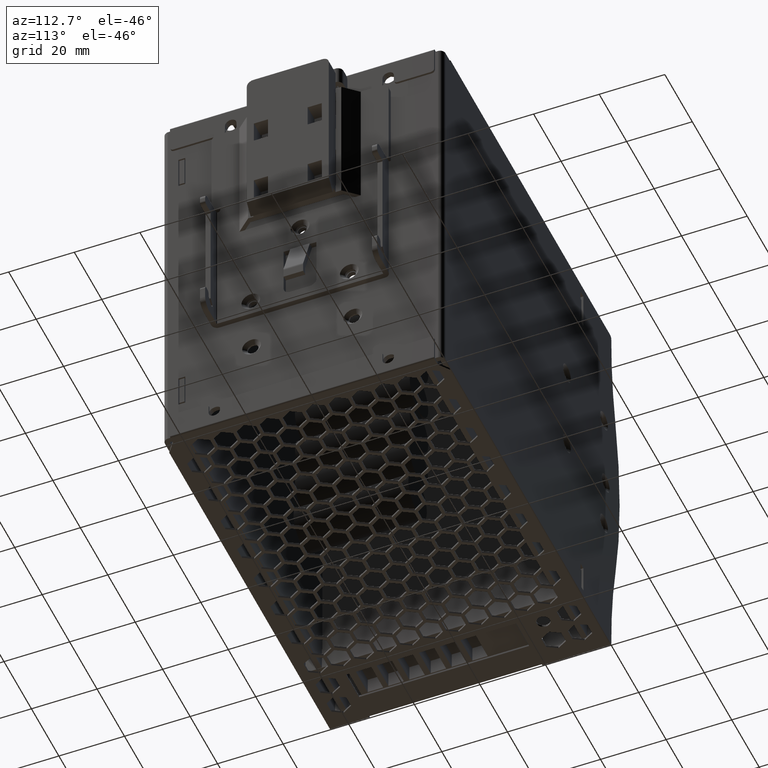
[diagram: clean part render]
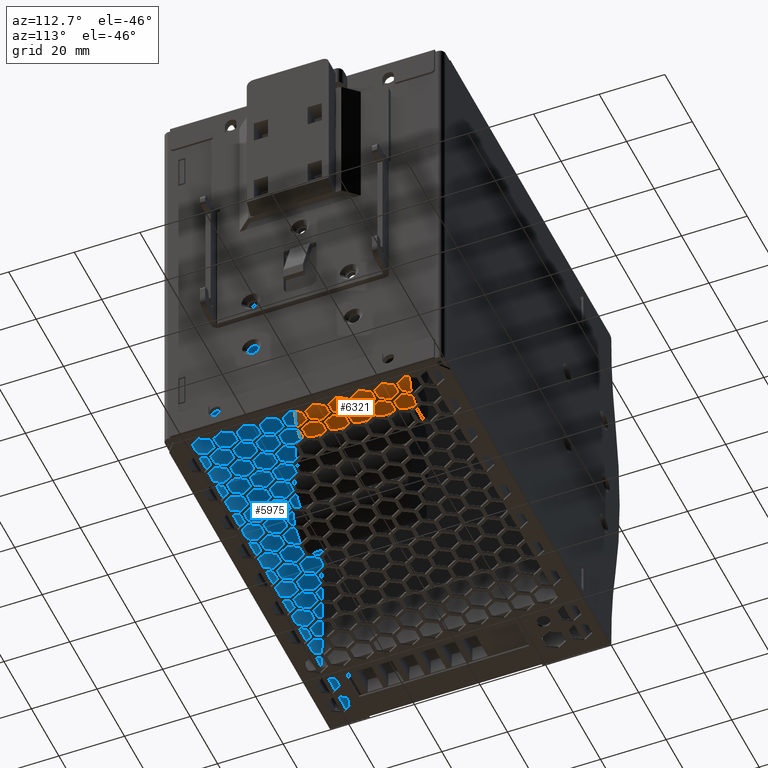
[diagram: same view with the hole feature highlighted: cylindrical wall and planar end face, labeled with their STEP entity ids]
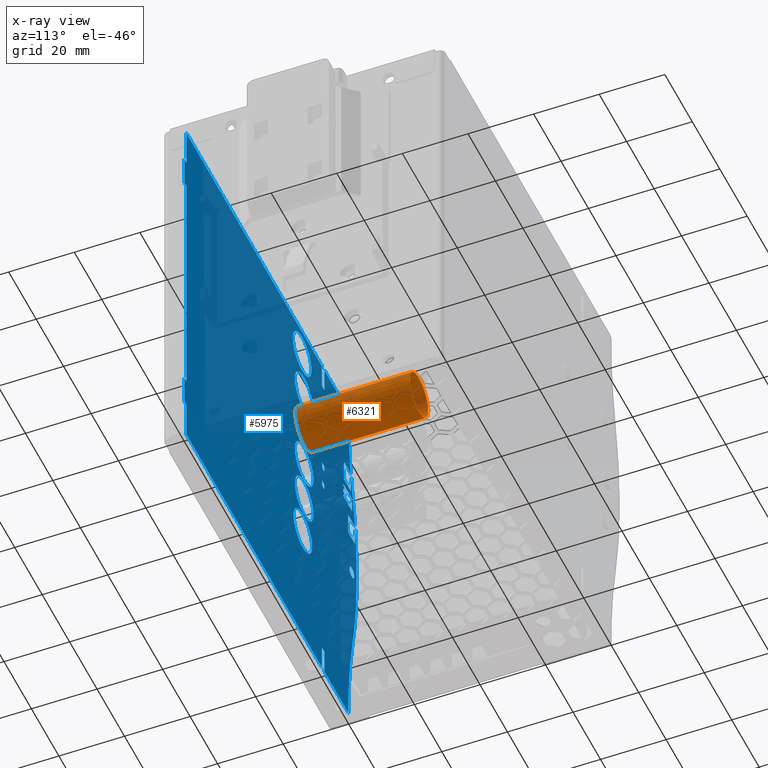
[diagram: x-ray of the same camera — body ghosted, the hole faces saturated]
A machine part, auxiliary view. The highlighted faces form one hole feature of diameter 13.5 mm: the cylindrical wall (entity #6321, orange) and its adjacent planar end face (entity #5975, blue) — they share a circular edge in the B-rep.
The next image is the same camera in x-ray (body ghosted, the hole faces saturated) — the bore reads through the body.
Wall:
#5681=CARTESIAN_POINT('',(5.242958000371990,25.836137000000004,35.000000000141398));
#5682=VERTEX_POINT('',#5681);
#5683=CARTESIAN_POINT('',(11.992958000345000,25.836137000000004,35.000000000141398));
#5684=DIRECTION('',(0.0,1.0,0.0));
#5685=DIRECTION('',(-1.0,0.0,0.0));
#5686=AXIS2_PLACEMENT_3D('',#5683,#5684,#5685);
#5687=CIRCLE('',#5686,6.749999999972991);
#5688=EDGE_CURVE('',#5682,#5682,#5687,.T.);
#6302=CARTESIAN_POINT('',(11.992958000345000,25.836137000000004,35.000000000141398));
#6303=DIRECTION('',(0.0,1.0,0.0));
#6304=DIRECTION('',(-1.0,0.0,0.0));
#6305=AXIS2_PLACEMENT_3D('',#6302,#6303,#6304);
#6306=CYLINDRICAL_SURFACE('',#6305,6.749999999972991);
#6307=CARTESIAN_POINT('',(5.242958000371990,60.836137000000008,35.000000000141398));
#6308=VERTEX_POINT('',#6307);
#6309=CARTESIAN_POINT('',(11.992958000345000,60.836137000000008,35.000000000141398));
#6310=DIRECTION('',(0.0,1.0,0.0));
#6311=DIRECTION('',(-1.0,0.0,0.0));
#6312=AXIS2_PLACEMENT_3D('',#6309,#6310,#6311);
#6313=CIRCLE('',#6312,6.749999999972991);
#6314=EDGE_CURVE('',#6308,#6308,#6313,.T.);
#6315=ORIENTED_EDGE('',*,*,#6314,.F.);
#6316=EDGE_LOOP('',(#6315));
#6317=FACE_OUTER_BOUND('',#6316,.T.);
#6318=ORIENTED_EDGE('',*,*,#5688,.T.);
#6319=EDGE_LOOP('',(#6318));
#6320=FACE_BOUND('',#6319,.T.);
#6321=ADVANCED_FACE('',(#6317,#6320),#6306,.T.);
End face:
#5068=CARTESIAN_POINT('',(97.752958000000021,25.836137000000004,51.500000000063800));
#5069=VERTEX_POINT('',#5068);
#5070=CARTESIAN_POINT('',(97.752958000000021,25.836137000000004,-27.499999999570601));
#5071=VERTEX_POINT('',#5070);
#5072=CARTESIAN_POINT('',(97.752958000000021,25.836137000000004,51.500000000063800));
#5073=DIRECTION('',(0.0,0.0,-1.0));
#5074=VECTOR('',#5073,78.999999999634397);
#5075=LINE('',#5072,#5074);
#5076=EDGE_CURVE('',#5069,#5071,#5075,.T.);
#5117=CARTESIAN_POINT('',(99.252958000000007,25.836137000000004,-27.499999999570601));
#5118=VERTEX_POINT('',#5117);
#5125=CARTESIAN_POINT('',(97.752958000000021,25.836137000000004,-27.499999999570601));
#5126=DIRECTION('',(1.0,0.0,0.0));
#5127=VECTOR('',#5126,1.499999999999986);
#5128=LINE('',#5125,#5127);
#5129=EDGE_CURVE('',#5071,#5118,#5128,.T.);
#5139=CARTESIAN_POINT('',(-20.202716694186403,25.836137000000004,-48.999999999509605));
#5140=VERTEX_POINT('',#5139);
#5149=CARTESIAN_POINT('',(-2.697041999709530,25.836137000000004,-48.999999999509605));
#5150=VERTEX_POINT('',#5149);
#5151=CARTESIAN_POINT('',(-2.697041999709530,25.836137000000004,-48.999999999509605));
#5152=DIRECTION('',(-1.0,0.0,0.0));
#5153=VECTOR('',#5152,17.505674694476873);
#5154=LINE('',#5151,#5153);
#5155=EDGE_CURVE('',#5150,#5140,#5154,.T.);
#5179=CARTESIAN_POINT('',(-20.202756284557402,25.836137000000004,-48.808464863391308));
#5180=VERTEX_POINT('',#5179);
#5181=CARTESIAN_POINT('',(-20.202756284557402,25.836137000000004,-48.808464863391308));
#5182=DIRECTION('',(0.000206700300300,0.0,-0.999999978637493));
#5183=VECTOR('',#5182,0.191535140209968);
#5184=LINE('',#5181,#5183);
#5185=EDGE_CURVE('',#5180,#5140,#5184,.T.);
#5210=CARTESIAN_POINT('',(-23.213020265155201,25.836137000000004,-18.209646134012800));
#5211=VERTEX_POINT('',#5210);
#5212=CARTESIAN_POINT('',(-169.200665681846030,25.836137000000004,-48.019164504897304));
#5213=DIRECTION('',(0.0,-1.0,0.0));
#5214=DIRECTION('',(0.0,0.0,-1.0));
#5215=AXIS2_PLACEMENT_3D('',#5212,#5213,#5214);
#5216=CIRCLE('',#5215,148.999999999391010);
#5217=EDGE_CURVE('',#5180,#5211,#5216,.T.);
#5243=CARTESIAN_POINT('',(-23.213020265152700,25.836137000000004,42.209646134520298));
#5244=VERTEX_POINT('',#5243);
#5245=CARTESIAN_POINT('',(124.734190861869010,25.836137000000004,12.000000000247702));
#5246=DIRECTION('',(0.0,-1.0,0.0));
#5247=DIRECTION('',(0.0,0.0,-1.0));
#5248=AXIS2_PLACEMENT_3D('',#5245,#5246,#5247);
#5249=CIRCLE('',#5248,150.999999999409000);
#5250=EDGE_CURVE('',#5244,#5211,#5249,.T.);
#5278=CARTESIAN_POINT('',(-20.202021535844899,25.836137000000004,73.000000000002885));
#5279=VERTEX_POINT('',#5278);
#5286=CARTESIAN_POINT('',(-20.202021535844899,25.836137000000004,72.654807855400406));
#5287=VERTEX_POINT('',#5286);
#5288=CARTESIAN_POINT('',(-20.202021535844899,25.836137000000004,73.000000000002885));
#5289=DIRECTION('',(0.0,0.0,-1.0));
#5290=VECTOR('',#5289,0.345192144602478);
#5291=LINE('',#5288,#5290);
#5292=EDGE_CURVE('',#5279,#5287,#5291,.T.);
#5316=CARTESIAN_POINT('',(-2.697041999709530,25.836137000000004,73.000000000002885));
#5317=VERTEX_POINT('',#5316);
#5326=CARTESIAN_POINT('',(-20.202021535844899,25.836137000000004,73.000000000002885));
#5327=DIRECTION('',(1.0,0.0,0.0));
#5328=VECTOR('',#5327,17.504979536135370);
#5329=LINE('',#5326,#5328);
#5330=EDGE_CURVE('',#5279,#5317,#5329,.T.);
#5347=CARTESIAN_POINT('',(-0.897041999709522,25.836137000000004,-48.999999999509605));
#5348=VERTEX_POINT('',#5347);
#5357=CARTESIAN_POINT('',(97.752958000000021,25.836137000000004,-48.999999999509605));
#5358=VERTEX_POINT('',#5357);
#5359=CARTESIAN_POINT('',(97.752958000000021,25.836137000000004,-48.999999999509605));
#5360=DIRECTION('',(-1.0,0.0,0.0));
#5361=VECTOR('',#5360,98.649999999709536);
#5362=LINE('',#5359,#5361);
#5363=EDGE_CURVE('',#5358,#5348,#5362,.T.);
#5389=CARTESIAN_POINT('',(-0.897041999709522,25.836137000000004,73.000000000002885));
#5390=VERTEX_POINT('',#5389);
#5397=CARTESIAN_POINT('',(-0.897041999709522,25.836137000000004,65.000000000003396));
#5398=VERTEX_POINT('',#5397);
#5399=CARTESIAN_POINT('',(-0.897041999709522,25.836137000000004,73.000000000002885));
#5400=DIRECTION('',(0.0,0.0,-1.0));
#5401=VECTOR('',#5400,7.999999999999488);
#5402=LINE('',#5399,#5401);
#5403=EDGE_CURVE('',#5390,#5398,#5402,.T.);
#5437=CARTESIAN_POINT('',(-2.697041999709530,25.836137000000004,-40.999999999509100));
#5438=VERTEX_POINT('',#5437);
#5445=CARTESIAN_POINT('',(-0.897041999709522,25.836137000000004,-40.999999999509100));
#5446=VERTEX_POINT('',#5445);
#5447=CARTESIAN_POINT('',(-2.697041999709530,25.836137000000004,-40.999999999509100));
#5448=DIRECTION('',(1.0,0.0,0.0));
#5449=VECTOR('',#5448,1.800000000000008);
#5450=LINE('',#5447,#5449);
#5451=EDGE_CURVE('',#5438,#5446,#5450,.T.);
#5468=CARTESIAN_POINT('',(-2.697041999709530,25.836137000000004,-48.999999999509605));
#5469=DIRECTION('',(0.0,0.0,1.0));
#5470=VECTOR('',#5469,8.000000000000505);
#5471=LINE('',#5468,#5470);
#5472=EDGE_CURVE('',#5150,#5438,#5471,.T.);
#5489=CARTESIAN_POINT('',(-0.897041999709522,25.836137000000004,-40.999999999509100));
#5490=DIRECTION('',(0.0,0.0,-1.0));
#5491=VECTOR('',#5490,8.000000000000505);
#5492=LINE('',#5489,#5491);
#5493=EDGE_CURVE('',#5446,#5348,#5492,.T.);
#5520=CARTESIAN_POINT('',(-2.697041999709530,25.836137000000004,65.000000000003396));
#5521=VERTEX_POINT('',#5520);
#5522=CARTESIAN_POINT('',(-0.897041999709522,25.836137000000004,65.000000000003396));
#5523=DIRECTION('',(-1.0,0.0,0.0));
#5524=VECTOR('',#5523,1.800000000000008);
#5525=LINE('',#5522,#5524);
#5526=EDGE_CURVE('',#5398,#5521,#5525,.T.);
#5549=CARTESIAN_POINT('',(-2.697041999709530,25.836137000000004,65.000000000003396));
#5550=DIRECTION('',(0.0,0.0,1.0));
#5551=VECTOR('',#5550,7.999999999999488);
#5552=LINE('',#5549,#5551);
#5553=EDGE_CURVE('',#5521,#5317,#5552,.T.);
#5559=CARTESIAN_POINT('',(86.102958000000015,25.836137000000004,-29.749999999570598));
#5560=DIRECTION('',(0.0,1.0,0.0));
#5561=DIRECTION('',(0.0,0.0,1.0));
#5562=AXIS2_PLACEMENT_3D('',#5559,#5560,#5561);
#5563=PLANE('',#5562);
#5564=ORIENTED_EDGE('',*,*,#5129,.T.);
#5565=CARTESIAN_POINT('',(99.252958000000007,25.836137000000004,-36.999999999570598));
#5566=VERTEX_POINT('',#5565);
#5567=CARTESIAN_POINT('',(99.252958000000007,25.836137000000004,-36.999999999570598));
#5568=DIRECTION('',(0.0,0.0,1.0));
#5569=VECTOR('',#5568,9.499999999999996);
#5570=LINE('',#5567,#5569);
#5571=EDGE_CURVE('',#5566,#5118,#5570,.T.);
#5572=ORIENTED_EDGE('',*,*,#5571,.F.);
#5573=CARTESIAN_POINT('',(97.752958000000021,25.836137000000004,-36.999999999570598));
#5574=VERTEX_POINT('',#5573);
#5575=CARTESIAN_POINT('',(97.752958000000021,25.836137000000004,-36.999999999570598));
#5576=DIRECTION('',(1.0,0.0,0.0));
#5577=VECTOR('',#5576,1.499999999999986);
#5578=LINE('',#5575,#5577);
#5579=EDGE_CURVE('',#5574,#5566,#5578,.T.);
#5580=ORIENTED_EDGE('',*,*,#5579,.F.);
#5581=CARTESIAN_POINT('',(97.752958000000021,25.836137000000004,-36.999999999570598));
#5582=DIRECTION('',(0.0,0.0,-1.0));
#5583=VECTOR('',#5582,11.999999999939007);
#5584=LINE('',#5581,#5583);
#5585=EDGE_CURVE('',#5574,#5358,#5584,.T.);
#5586=ORIENTED_EDGE('',*,*,#5585,.T.);
#5587=ORIENTED_EDGE('',*,*,#5363,.T.);
#5588=ORIENTED_EDGE('',*,*,#5493,.F.);
#5589=ORIENTED_EDGE('',*,*,#5451,.F.);
#5590=ORIENTED_EDGE('',*,*,#5472,.F.);
#5591=ORIENTED_EDGE('',*,*,#5155,.T.);
#5592=ORIENTED_EDGE('',*,*,#5185,.F.);
#5593=ORIENTED_EDGE('',*,*,#5217,.T.);
#5594=ORIENTED_EDGE('',*,*,#5250,.F.);
#5595=CARTESIAN_POINT('',(-169.200665681846030,25.836137000000004,72.019164505417706));
#5596=DIRECTION('',(0.0,-1.0,0.0));
#5597=DIRECTION('',(0.0,0.0,-1.0));
#5598=AXIS2_PLACEMENT_3D('',#5595,#5596,#5597);
#5599=CIRCLE('',#5598,148.999999999380010);
#5600=EDGE_CURVE('',#5244,#5287,#5599,.T.);
#5601=ORIENTED_EDGE('',*,*,#5600,.T.);
#5602=ORIENTED_EDGE('',*,*,#5292,.F.);
#5603=ORIENTED_EDGE('',*,*,#5330,.T.);
#5604=ORIENTED_EDGE('',*,*,#5553,.F.);
#5605=ORIENTED_EDGE('',*,*,#5526,.F.);
#5606=ORIENTED_EDGE('',*,*,#5403,.F.);
#5607=CARTESIAN_POINT('',(97.752958000000021,25.836137000000004,73.000000000002885));
#5608=VERTEX_POINT('',#5607);
#5609=CARTESIAN_POINT('',(-0.897041999709522,25.836137000000004,73.000000000002885));
#5610=DIRECTION('',(1.0,0.0,0.0));
#5611=VECTOR('',#5610,98.649999999709536);
#5612=LINE('',#5609,#5611);
#5613=EDGE_CURVE('',#5390,#5608,#5612,.T.);
#5614=ORIENTED_EDGE('',*,*,#5613,.T.);
#5615=CARTESIAN_POINT('',(97.752958000000021,25.836137000000004,61.000000000063807));
#5616=VERTEX_POINT('',#5615);
#5617=CARTESIAN_POINT('',(97.752958000000021,25.836137000000004,73.000000000002885));
#5618=DIRECTION('',(0.0,0.0,-1.0));
#5619=VECTOR('',#5618,11.999999999939078);
#5620=LINE('',#5617,#5619);
#5621=EDGE_CURVE('',#5608,#5616,#5620,.T.);
#5622=ORIENTED_EDGE('',*,*,#5621,.T.);
#5623=CARTESIAN_POINT('',(99.252958000000007,25.836137000000004,61.000000000063807));
#5624=VERTEX_POINT('',#5623);
#5625=CARTESIAN_POINT('',(99.252958000000007,25.836137000000004,61.000000000063807));
#5626=DIRECTION('',(-1.0,0.0,0.0));
#5627=VECTOR('',#5626,1.499999999999986);
#5628=LINE('',#5625,#5627);
#5629=EDGE_CURVE('',#5624,#5616,#5628,.T.);
#5630=ORIENTED_EDGE('',*,*,#5629,.F.);
#5631=CARTESIAN_POINT('',(99.252958000000007,25.836137000000004,51.500000000063800));
#5632=VERTEX_POINT('',#5631);
#5633=CARTESIAN_POINT('',(99.252958000000007,25.836137000000004,51.500000000063800));
#5634=DIRECTION('',(0.0,0.0,1.0));
#5635=VECTOR('',#5634,9.500000000000007);
#5636=LINE('',#5633,#5635);
#5637=EDGE_CURVE('',#5632,#5624,#5636,.T.);
#5638=ORIENTED_EDGE('',*,*,#5637,.F.);
#5639=CARTESIAN_POINT('',(99.252958000000007,25.836137000000004,51.500000000063800));
#5640=DIRECTION('',(-1.0,0.0,0.0));
#5641=VECTOR('',#5640,1.499999999999986);
#5642=LINE('',#5639,#5641);
#5643=EDGE_CURVE('',#5632,#5069,#5642,.T.);
#5644=ORIENTED_EDGE('',*,*,#5643,.T.);
#5645=ORIENTED_EDGE('',*,*,#5076,.T.);
#5646=EDGE_LOOP('',(#5564,#5572,#5580,#5586,#5587,#5588,#5589,#5590,#5591,#5592,#5593,#5594,#5601,#5602,#5603,#5604,#5605,#5606,#5614,#5622,#5630,#5638,#5644,#5645));
#5647=FACE_OUTER_BOUND('',#5646,.T.);
#5648=CARTESIAN_POINT('',(6.252958000371981,25.836137000000004,-6.999999999690640));
#5649=VERTEX_POINT('',#5648);
#5650=CARTESIAN_POINT('',(13.002958000345002,25.836137000000004,-6.999999999690640));
#5651=DIRECTION('',(0.0,1.0,0.0));
#5652=DIRECTION('',(-1.0,0.0,0.0));
#5653=AXIS2_PLACEMENT_3D('',#5650,#5651,#5652);
#5654=CIRCLE('',#5653,6.749999999972991);
#5655=EDGE_CURVE('',#5649,#5649,#5654,.T.);
#5656=ORIENTED_EDGE('',*,*,#5655,.F.);
#5657=EDGE_LOOP('',(#5656));
#5658=FACE_BOUND('',#5657,.T.);
#5659=CARTESIAN_POINT('',(5.242958000371961,25.836137000000004,21.000000000197399));
#5660=VERTEX_POINT('',#5659);
#5661=CARTESIAN_POINT('',(11.992958000345000,25.836137000000004,21.000000000197399));
#5662=DIRECTION('',(0.0,1.0,0.0));
#5663=DIRECTION('',(-1.0,0.0,0.0));
#5664=AXIS2_PLACEMENT_3D('',#5661,#5662,#5663);
#5665=CIRCLE('',#5664,6.749999999973031);
#5666=EDGE_CURVE('',#5660,#5660,#5665,.T.);
#5667=ORIENTED_EDGE('',*,*,#5666,.F.);
#5668=EDGE_LOOP('',(#5667));
#5669=FACE_BOUND('',#5668,.T.);
#5670=CARTESIAN_POINT('',(5.242958000371990,25.836137000000004,49.250000000084398));
#5671=VERTEX_POINT('',#5670);
#5672=CARTESIAN_POINT('',(11.992958000345000,25.836137000000004,49.250000000084398));
#5673=DIRECTION('',(0.0,1.0,0.0));
#5674=DIRECTION('',(-1.0,0.0,0.0));
#5675=AXIS2_PLACEMENT_3D('',#5672,#5673,#5674);
#5676=CIRCLE('',#5675,6.749999999972991);
#5677=EDGE_CURVE('',#5671,#5671,#5676,.T.);
#5678=ORIENTED_EDGE('',*,*,#5677,.F.);
#5679=EDGE_LOOP('',(#5678));
#5680=FACE_BOUND('',#5679,.T.);
#5681=CARTESIAN_POINT('',(5.242958000371990,25.836137000000004,35.000000000141398));
#5682=VERTEX_POINT('',#5681);
#5683=CARTESIAN_POINT('',(11.992958000345000,25.836137000000004,35.000000000141398));
#5684=DIRECTION('',(0.0,1.0,0.0));
#5685=DIRECTION('',(-1.0,0.0,0.0));
#5686=AXIS2_PLACEMENT_3D('',#5683,#5684,#5685);
#5687=CIRCLE('',#5686,6.749999999972991);
#5688=EDGE_CURVE('',#5682,#5682,#5687,.T.);
#5689=ORIENTED_EDGE('',*,*,#5688,.F.);
#5690=EDGE_LOOP('',(#5689));
#5691=FACE_BOUND('',#5690,.T.);
#5692=CARTESIAN_POINT('',(-24.497041999534002,25.836137000000004,10.250000000253499));
#5693=VERTEX_POINT('',#5692);
#5694=CARTESIAN_POINT('',(-22.747041999533998,25.836137000000004,10.250000000253499));
#5695=DIRECTION('',(0.0,1.0,0.0));
#5696=DIRECTION('',(-1.0,0.0,0.0));
#5697=AXIS2_PLACEMENT_3D('',#5694,#5695,#5696);
#5698=CIRCLE('',#5697,1.750000000000000);
#5699=EDGE_CURVE('',#5693,#5693,#5698,.T.);
#5700=ORIENTED_EDGE('',*,*,#5699,.F.);
#5701=EDGE_LOOP('',(#5700));
#5702=FACE_BOUND('',#5701,.T.);
#5703=CARTESIAN_POINT('',(6.720729093573031,25.836137000000004,64.182230000027388));
#5704=VERTEX_POINT('',#5703);
#5705=CARTESIAN_POINT('',(13.470728000345902,25.836137000000004,64.182230000027388));
#5706=DIRECTION('',(0.0,1.0,0.0));
#5707=DIRECTION('',(-1.0,0.0,0.0));
#5708=AXIS2_PLACEMENT_3D('',#5705,#5706,#5707);
#5709=CIRCLE('',#5708,6.749998906772900);
#5710=EDGE_CURVE('',#5704,#5704,#5709,.T.);
#5711=ORIENTED_EDGE('',*,*,#5710,.F.);
#5712=EDGE_LOOP('',(#5711));
#5713=FACE_BOUND('',#5712,.T.);
#5714=CARTESIAN_POINT('',(5.252958000371950,25.836137000000004,7.000000000253372));
#5715=VERTEX_POINT('',#5714);
#5716=CARTESIAN_POINT('',(12.002958000345000,25.836137000000004,7.000000000253372));
#5717=DIRECTION('',(0.0,1.0,0.0));
#5718=DIRECTION('',(-1.0,0.0,0.0));
#5719=AXIS2_PLACEMENT_3D('',#5716,#5717,#5718);
#5720=CIRCLE('',#5719,6.749999999973031);
#5721=EDGE_CURVE('',#5715,#5715,#5720,.T.);
#5722=ORIENTED_EDGE('',*,*,#5721,.F.);
#5723=EDGE_LOOP('',(#5722));
#5724=FACE_BOUND('',#5723,.T.);
#5725=CARTESIAN_POINT('',(-0.997499799710241,25.836137000000004,26.749618064602299));
#5726=VERTEX_POINT('',#5725);
#5727=CARTESIAN_POINT('',(-0.997499799710241,25.836137000000004,24.749618064611401));
#5728=VERTEX_POINT('',#5727);
#5729=CARTESIAN_POINT('',(-0.997499799710241,25.836137000000004,26.749618064602299));
#5730=DIRECTION('',(0.0,0.0,-1.0));
#5731=VECTOR('',#5730,1.999999999990898);
#5732=LINE('',#5729,#5731);
#5733=EDGE_CURVE('',#5726,#5728,#5732,.T.);
#5734=ORIENTED_EDGE('',*,*,#5733,.F.);
#5735=CARTESIAN_POINT('',(-2.597499799709690,25.836137000000004,26.749618064602299));
#5736=VERTEX_POINT('',#5735);
#5737=CARTESIAN_POINT('',(-2.597499799709690,25.836137000000004,26.749618064602299));
#5738=DIRECTION('',(1.0,0.0,0.0));
#5739=VECTOR('',#5738,1.599999999999449);
#5740=LINE('',#5737,#5739);
#5741=EDGE_CURVE('',#5736,#5726,#5740,.T.);
#5742=ORIENTED_EDGE('',*,*,#5741,.F.);
#5743=CARTESIAN_POINT('',(-2.597499799709690,25.836137000000004,24.749618064611401));
#5744=VERTEX_POINT('',#5743);
#5745=CARTESIAN_POINT('',(-2.597499799709690,25.836137000000004,26.749618064602299));
#5746=DIRECTION('',(0.0,0.0,-1.0));
#5747=VECTOR('',#5746,1.999999999990898);
#5748=LINE('',#5745,#5747);
#5749=EDGE_CURVE('',#5736,#5744,#5748,.T.);
#5750=ORIENTED_EDGE('',*,*,#5749,.T.);
#5751=CARTESIAN_POINT('',(-0.997499799710241,25.836137000000004,24.749618064611401));
#5752=DIRECTION('',(-1.0,0.0,0.0));
#5753=VECTOR('',#5752,1.599999999999449);
#5754=LINE('',#5751,#5753);
#5755=EDGE_CURVE('',#5728,#5744,#5754,.T.);
#5756=ORIENTED_EDGE('',*,*,#5755,.F.);
#5757=EDGE_LOOP('',(#5734,#5742,#5750,#5756));
#5758=FACE_BOUND('',#5757,.T.);
#5759=CARTESIAN_POINT('',(-2.597499799709690,25.836137000000004,34.023838064561595));
#5760=VERTEX_POINT('',#5759);
#5761=CARTESIAN_POINT('',(-2.597499799709690,25.836137000000004,32.023838064570704));
#5762=VERTEX_POINT('',#5761);
#5763=CARTESIAN_POINT('',(-2.597499799709690,25.836137000000004,34.023838064561595));
#5764=DIRECTION('',(0.0,0.0,-1.0));
#5765=VECTOR('',#5764,1.999999999990891);
#5766=LINE('',#5763,#5765);
#5767=EDGE_CURVE('',#5760,#5762,#5766,.T.);
#5768=ORIENTED_EDGE('',*,*,#5767,.T.);
#5769=CARTESIAN_POINT('',(-0.997499799710241,25.836137000000004,32.023838064570704));
#5770=VERTEX_POINT('',#5769);
#5771=CARTESIAN_POINT('',(-0.997499799710241,25.836137000000004,32.023838064570704));
#5772=DIRECTION('',(-1.0,0.0,0.0));
#5773=VECTOR('',#5772,1.599999999999449);
#5774=LINE('',#5771,#5773);
#5775=EDGE_CURVE('',#5770,#5762,#5774,.T.);
#5776=ORIENTED_EDGE('',*,*,#5775,.F.);
#5777=CARTESIAN_POINT('',(-0.997499799710241,25.836137000000004,34.023838064561595));
#5778=VERTEX_POINT('',#5777);
#5779=CARTESIAN_POINT('',(-0.997499799710241,25.836137000000004,34.023838064561595));
#5780=DIRECTION('',(0.0,0.0,-1.0));
#5781=VECTOR('',#5780,1.999999999990891);
#5782=LINE('',#5779,#5781);
#5783=EDGE_CURVE('',#5778,#5770,#5782,.T.);
#5784=ORIENTED_EDGE('',*,*,#5783,.F.);
#5785=CARTESIAN_POINT('',(-2.597499799709690,25.836137000000004,34.023838064561595));
#5786=DIRECTION('',(1.0,0.0,0.0));
#5787=VECTOR('',#5786,1.599999999999449);
#5788=LINE('',#5785,#5787);
#5789=EDGE_CURVE('',#5760,#5778,#5788,.T.);
#5790=ORIENTED_EDGE('',*,*,#5789,.F.);
#5791=EDGE_LOOP('',(#5768,#5776,#5784,#5790));
#5792=FACE_BOUND('',#5791,.T.);
#5793=CARTESIAN_POINT('',(-16.906441893837602,25.836137000000004,42.499988064101402));
#5794=VERTEX_POINT('',#5793);
#5795=CARTESIAN_POINT('',(-21.897041893822703,25.836137000000004,42.499988064101402));
#5796=VERTEX_POINT('',#5795);
#5797=CARTESIAN_POINT('',(-16.906441893837602,25.836137000000004,42.499988064101402));
#5798=DIRECTION('',(-1.0,0.0,0.0));
#5799=VECTOR('',#5798,4.990599999985101);
#5800=LINE('',#5797,#5799);
#5801=EDGE_CURVE('',#5794,#5796,#5800,.T.);
#5802=ORIENTED_EDGE('',*,*,#5801,.F.);
#5803=CARTESIAN_POINT('',(-16.906441893837602,25.836137000000004,49.505188064061905));
#5804=VERTEX_POINT('',#5803);
#5805=CARTESIAN_POINT('',(-16.906441893837602,25.836137000000004,49.505188064061905));
#5806=DIRECTION('',(0.0,0.0,-1.0));
#5807=VECTOR('',#5806,7.005199999960503);
#5808=LINE('',#5805,#5807);
#5809=EDGE_CURVE('',#5804,#5794,#5808,.T.);
#5810=ORIENTED_EDGE('',*,*,#5809,.F.);
#5811=CARTESIAN_POINT('',(-17.147041893841802,25.836137000000004,49.499988064074110));
#5812=VERTEX_POINT('',#5811);
#5813=CARTESIAN_POINT('',(-17.147041893841802,25.836137000000004,49.499988064074110));
#5814=DIRECTION('',(0.999766528792243,0.0,0.021607589099862));
#5815=VECTOR('',#5814,0.240656186294668);
#5816=LINE('',#5813,#5815);
#5817=EDGE_CURVE('',#5812,#5804,#5816,.T.);
#5818=ORIENTED_EDGE('',*,*,#5817,.F.);
#5819=CARTESIAN_POINT('',(-21.897041893822703,25.836137000000004,49.499988064074110));
#5820=VERTEX_POINT('',#5819);
#5821=CARTESIAN_POINT('',(-21.897041893822703,25.836137000000004,49.499988064074110));
#5822=DIRECTION('',(1.0,0.0,0.0));
#5823=VECTOR('',#5822,4.749999999980901);
#5824=LINE('',#5821,#5823);
#5825=EDGE_CURVE('',#5820,#5812,#5824,.T.);
#5826=ORIENTED_EDGE('',*,*,#5825,.F.);
#5827=CARTESIAN_POINT('',(-21.897041893822703,25.836137000000004,42.499988064101402));
#5828=DIRECTION('',(0.0,0.0,1.0));
#5829=VECTOR('',#5828,6.999999999972708);
#5830=LINE('',#5827,#5829);
#5831=EDGE_CURVE('',#5796,#5820,#5830,.T.);
#5832=ORIENTED_EDGE('',*,*,#5831,.F.);
#5833=EDGE_LOOP('',(#5802,#5810,#5818,#5826,#5832));
#5834=FACE_BOUND('',#5833,.T.);
#5835=CARTESIAN_POINT('',(-17.187041893851699,25.836137000000004,38.509988064110701));
#5836=VERTEX_POINT('',#5835);
#5837=CARTESIAN_POINT('',(-16.437041893855799,25.836137000000004,38.509988064110701));
#5838=VERTEX_POINT('',#5837);
#5839=CARTESIAN_POINT('',(-17.187041893851699,25.836137000000004,38.509988064110701));
#5840=DIRECTION('',(1.0,0.0,0.0));
#5841=VECTOR('',#5840,0.749999999995900);
#5842=LINE('',#5839,#5841);
#5843=EDGE_CURVE('',#5836,#5838,#5842,.T.);
#5844=ORIENTED_EDGE('',*,*,#5843,.F.);
#5845=CARTESIAN_POINT('',(-17.187041893851699,25.836137000000004,39.509988064106196));
#5846=VERTEX_POINT('',#5845);
#5847=CARTESIAN_POINT('',(-17.187041893851699,25.836137000000004,39.509988064106196));
#5848=DIRECTION('',(0.0,0.0,-1.0));
#5849=VECTOR('',#5848,0.999999999995495);
#5850=LINE('',#5847,#5849);
#5851=EDGE_CURVE('',#5846,#5836,#5850,.T.);
#5852=ORIENTED_EDGE('',*,*,#5851,.F.);
#5853=CARTESIAN_POINT('',(-16.437041893855799,25.836137000000004,39.509988064106196));
#5854=VERTEX_POINT('',#5853);
#5855=CARTESIAN_POINT('',(-16.437041893855799,25.836137000000004,39.509988064106196));
#5856=DIRECTION('',(-1.0,0.0,0.0));
#5857=VECTOR('',#5856,0.749999999995900);
#5858=LINE('',#5855,#5857);
#5859=EDGE_CURVE('',#5854,#5846,#5858,.T.);
#5860=ORIENTED_EDGE('',*,*,#5859,.F.);
#5861=CARTESIAN_POINT('',(-16.437041893855799,25.836137000000004,40.259988064103496));
#5862=VERTEX_POINT('',#5861);
#5863=CARTESIAN_POINT('',(-16.437041893855799,25.836137000000004,40.259988064103496));
#5864=DIRECTION('',(0.0,0.0,-1.0));
#5865=VECTOR('',#5864,0.749999999997300);
#5866=LINE('',#5863,#5865);
#5867=EDGE_CURVE('',#5862,#5854,#5866,.T.);
#5868=ORIENTED_EDGE('',*,*,#5867,.F.);
#5869=CARTESIAN_POINT('',(-22.937041893829900,25.836137000000004,40.259988064103496));
#5870=VERTEX_POINT('',#5869);
#5871=CARTESIAN_POINT('',(-22.937041893829900,25.836137000000004,40.259988064103496));
#5872=DIRECTION('',(1.0,0.0,0.0));
#5873=VECTOR('',#5872,6.499999999974101);
#5874=LINE('',#5871,#5873);
#5875=EDGE_CURVE('',#5870,#5862,#5874,.T.);
#5876=ORIENTED_EDGE('',*,*,#5875,.F.);
#5877=CARTESIAN_POINT('',(-22.937041893829900,25.836137000000004,35.259988064124400));
#5878=VERTEX_POINT('',#5877);
#5879=CARTESIAN_POINT('',(-22.937041893829900,25.836137000000004,35.259988064124400));
#5880=DIRECTION('',(0.0,0.0,1.0));
#5881=VECTOR('',#5880,4.999999999979096);
#5882=LINE('',#5879,#5881);
#5883=EDGE_CURVE('',#5878,#5870,#5882,.T.);
#5884=ORIENTED_EDGE('',*,*,#5883,.F.);
#5885=CARTESIAN_POINT('',(-16.437041893855799,25.836137000000004,35.259988064124400));
#5886=VERTEX_POINT('',#5885);
#5887=CARTESIAN_POINT('',(-16.437041893855799,25.836137000000004,35.259988064124400));
#5888=DIRECTION('',(-1.0,0.0,0.0));
#5889=VECTOR('',#5888,6.499999999974101);
#5890=LINE('',#5887,#5889);
#5891=EDGE_CURVE('',#5886,#5878,#5890,.T.);
#5892=ORIENTED_EDGE('',*,*,#5891,.F.);
#5893=CARTESIAN_POINT('',(-16.437041893855799,25.836137000000004,36.009988064120705));
#5894=VERTEX_POINT('',#5893);
#5895=CARTESIAN_POINT('',(-16.437041893855799,25.836137000000004,36.009988064120705));
#5896=DIRECTION('',(0.0,0.0,-1.0));
#5897=VECTOR('',#5896,0.749999999996305);
#5898=LINE('',#5895,#5897);
#5899=EDGE_CURVE('',#5894,#5886,#5898,.T.);
#5900=ORIENTED_EDGE('',*,*,#5899,.F.);
#5901=CARTESIAN_POINT('',(-17.187041893851699,25.836137000000004,36.009988064120705));
#5902=VERTEX_POINT('',#5901);
#5903=CARTESIAN_POINT('',(-17.187041893851699,25.836137000000004,36.009988064120705));
#5904=DIRECTION('',(1.0,0.0,0.0));
#5905=VECTOR('',#5904,0.749999999995900);
#5906=LINE('',#5903,#5905);
#5907=EDGE_CURVE('',#5902,#5894,#5906,.T.);
#5908=ORIENTED_EDGE('',*,*,#5907,.F.);
#5909=CARTESIAN_POINT('',(-17.187041893851699,25.836137000000004,37.009988064116200));
#5910=VERTEX_POINT('',#5909);
#5911=CARTESIAN_POINT('',(-17.187041893851699,25.836137000000004,37.009988064116200));
#5912=DIRECTION('',(0.0,0.0,-1.0));
#5913=VECTOR('',#5912,0.999999999995495);
#5914=LINE('',#5911,#5913);
#5915=EDGE_CURVE('',#5910,#5902,#5914,.T.);
#5916=ORIENTED_EDGE('',*,*,#5915,.F.);
#5917=CARTESIAN_POINT('',(-16.437041893855799,25.836137000000004,37.009988064116200));
#5918=VERTEX_POINT('',#5917);
#5919=CARTESIAN_POINT('',(-16.437041893855799,25.836137000000004,37.009988064116200));
#5920=DIRECTION('',(-1.0,0.0,0.0));
#5921=VECTOR('',#5920,0.749999999995900);
#5922=LINE('',#5919,#5921);
#5923=EDGE_CURVE('',#5918,#5910,#5922,.T.);
#5924=ORIENTED_EDGE('',*,*,#5923,.F.);
#5925=CARTESIAN_POINT('',(-16.437041893855799,25.836137000000004,38.509988064110701));
#5926=DIRECTION('',(0.0,0.0,-1.0));
#5927=VECTOR('',#5926,1.499999999994500);
#5928=LINE('',#5925,#5927);
#5929=EDGE_CURVE('',#5838,#5918,#5928,.T.);
#5930=ORIENTED_EDGE('',*,*,#5929,.F.);
#5931=EDGE_LOOP('',(#5844,#5852,#5860,#5868,#5876,#5884,#5892,#5900,#5908,#5916,#5924,#5930));
#5932=FACE_BOUND('',#5931,.T.);
#5933=CARTESIAN_POINT('',(-20.006441893837600,25.836137000000004,23.997400064101399));
#5934=VERTEX_POINT('',#5933);
#5935=CARTESIAN_POINT('',(-24.997041893822601,25.836137000000004,23.997400064101399));
#5936=VERTEX_POINT('',#5935);
#5937=CARTESIAN_POINT('',(-20.006441893837600,25.836137000000004,23.997400064101399));
#5938=DIRECTION('',(-1.0,0.0,0.0));
#5939=VECTOR('',#5938,4.990599999985001);
#5940=LINE('',#5937,#5939);
#5941=EDGE_CURVE('',#5934,#5936,#5940,.T.);
#5942=ORIENTED_EDGE('',*,*,#5941,.F.);
#5943=CARTESIAN_POINT('',(-20.006441893837600,25.836137000000004,31.002600064061898));
#5944=VERTEX_POINT('',#5943);
#5945=CARTESIAN_POINT('',(-20.006441893837600,25.836137000000004,31.002600064061898));
#5946=DIRECTION('',(0.0,0.0,-1.0));
#5947=VECTOR('',#5946,7.005199999960500);
#5948=LINE('',#5945,#5947);
#5949=EDGE_CURVE('',#5944,#5934,#5948,.T.);
#5950=ORIENTED_EDGE('',*,*,#5949,.F.);
#5951=CARTESIAN_POINT('',(-20.247041893841700,25.836137000000004,30.997400064074103));
#5952=VERTEX_POINT('',#5951);
#5953=CARTESIAN_POINT('',(-20.247041893841700,25.836137000000004,30.997400064074103));
#5954=DIRECTION('',(0.999766528792243,0.0,0.021607589099871));
#5955=VECTOR('',#5954,0.240656186294569);
#5956=LINE('',#5953,#5955);
#5957=EDGE_CURVE('',#5952,#5944,#5956,.T.);
#5958=ORIENTED_EDGE('',*,*,#5957,.F.);
#5959=CARTESIAN_POINT('',(-24.997041893822601,25.836137000000004,30.997400064074103));
#5960=VERTEX_POINT('',#5959);
#5961=CARTESIAN_POINT('',(-24.997041893822601,25.836137000000004,30.997400064074103));
#5962=DIRECTION('',(1.0,0.0,0.0));
#5963=VECTOR('',#5962,4.749999999980901);
#5964=LINE('',#5961,#5963);
#5965=EDGE_CURVE('',#5960,#5952,#5964,.T.);
#5966=ORIENTED_EDGE('',*,*,#5965,.F.);
#5967=CARTESIAN_POINT('',(-24.997041893822601,25.836137000000004,23.997400064101399));
#5968=DIRECTION('',(0.0,0.0,1.0));
#5969=VECTOR('',#5968,6.999999999972705);
#5970=LINE('',#5967,#5969);
#5971=EDGE_CURVE('',#5936,#5960,#5970,.T.);
#5972=ORIENTED_EDGE('',*,*,#5971,.F.);
#5973=EDGE_LOOP('',(#5942,#5950,#5958,#5966,#5972));
#5974=FACE_BOUND('',#5973,.T.);
#5975=ADVANCED_FACE('',(#5647,#5658,#5669,#5680,#5691,#5702,#5713,#5724,#5758,#5792,#5834,#5932,#5974),#5563,.T.);